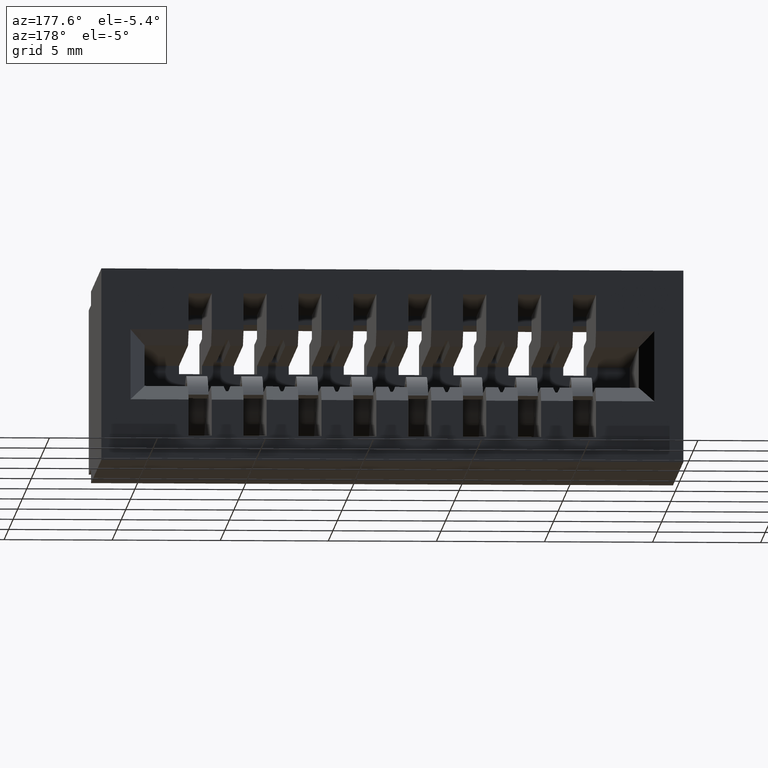
[diagram: clean part render]
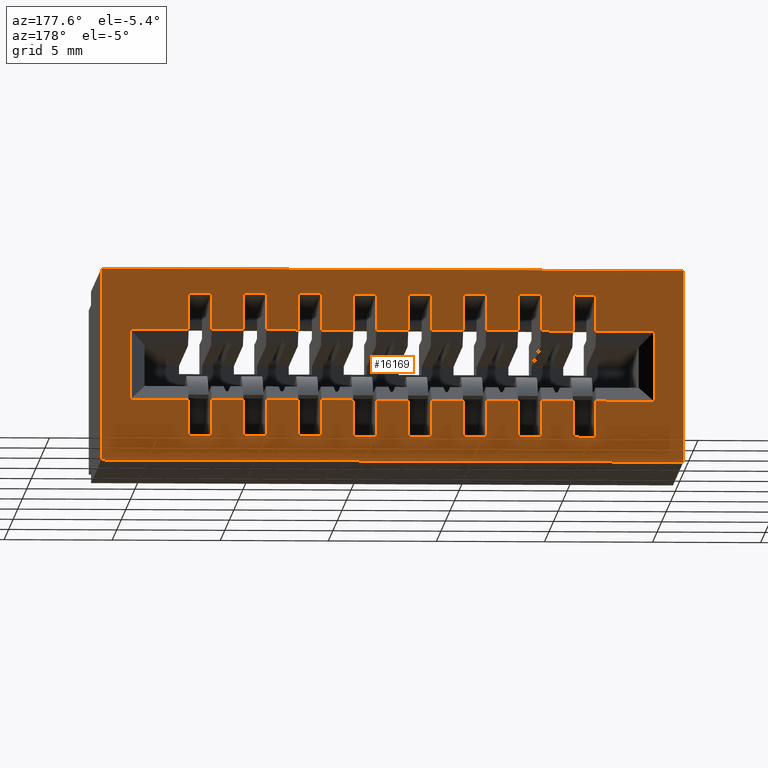
[diagram: same view with one face highlighted and labeled with its STEP entity id]
A machine part, auxiliary view. The second image highlights one B-rep face of the part: STEP entity #16169.
In plain terms, the highlighted planar face has unit normal (0, -1, 0).
Its self-contained STEP definition (entity closure, byte-faithful):
#37 = CARTESIAN_POINT ( 'NONE',  ( 0.4589999999999996900, 0.5500000000000000400, -0.3050000000000001000 ) ) ;
#82 = LINE ( 'NONE', #6037, #7464 ) ;
#85 = EDGE_CURVE ( 'NONE', #1912, #13380, #8628, .T. ) ;
#165 = CARTESIAN_POINT ( 'NONE',  ( 0.7009999999999997300, 0.5500000000000000400, -4.225887745141794000E-017 ) ) ;
#174 = DIRECTION ( 'NONE',  ( -1.000000000000000000, 0.0000000000000000000, 0.0000000000000000000 ) ) ;
#184 = CARTESIAN_POINT ( 'NONE',  ( 0.2009999999999996800, 0.5500000000000000400, -4.225887745141794000E-017 ) ) ;
#198 = DIRECTION ( 'NONE',  ( -1.000000000000000000, 0.0000000000000000000, 0.0000000000000000000 ) ) ;
#211 = VERTEX_POINT ( 'NONE', #2329 ) ;
#255 = VECTOR ( 'NONE', #10882, 39.37007874015748100 ) ;
#273 = DIRECTION ( 'NONE',  ( 1.000000000000000000, -0.0000000000000000000, -2.307304048702925100E-016 ) ) ;
#306 = VERTEX_POINT ( 'NONE', #1093 ) ;
#368 = CARTESIAN_POINT ( 'NONE',  ( 0.0000000000000000000, 0.5500000000000000400, -0.3499999999999999800 ) ) ;
#375 = DIRECTION ( 'NONE',  ( 2.078529941618992500E-016, 0.0000000000000000000, 1.000000000000000000 ) ) ;
#402 = CARTESIAN_POINT ( 'NONE',  ( 1.007000000000000300, 0.5500000000000000400, -0.2389999999999999600 ) ) ;
#438 = CARTESIAN_POINT ( 'NONE',  ( 1.110816665604960700, 0.5500000000000000400, -0.2389999999999999600 ) ) ;
#460 = CARTESIAN_POINT ( 'NONE',  ( 1.110816665604960700, 0.5500000000000000400, -0.1109999999999999700 ) ) ;
#505 = DIRECTION ( 'NONE',  ( 2.078529941618992500E-016, 0.0000000000000000000, 1.000000000000000000 ) ) ;
#574 = CARTESIAN_POINT ( 'NONE',  ( 0.05299999999999995700, 0.5500000000000000400, -0.2389999999999999600 ) ) ;
#665 = VERTEX_POINT ( 'NONE', #11460 ) ;
#680 = VECTOR ( 'NONE', #3930, 39.37007874015748100 ) ;
#688 = CARTESIAN_POINT ( 'NONE',  ( 0.7589999999999997900, 0.5500000000000000400, -0.2389999999999999600 ) ) ;
#734 = DIRECTION ( 'NONE',  ( 0.0000000000000000000, 0.0000000000000000000, 1.000000000000000000 ) ) ;
#781 = CARTESIAN_POINT ( 'NONE',  ( 0.05300000000000000500, 0.5500000000000000400, -0.3499999999999999800 ) ) ;
#824 = VECTOR ( 'NONE', #3167, 39.37007874015748100 ) ;
#829 = CARTESIAN_POINT ( 'NONE',  ( 0.0000000000000000000, 0.5500000000000000400, 0.0000000000000000000 ) ) ;
#831 = CARTESIAN_POINT ( 'NONE',  ( 1.060000000000000100, 0.5500000000000000400, -0.3499999999999999800 ) ) ;
#846 = VERTEX_POINT ( 'NONE', #16712 ) ;
#900 = VECTOR ( 'NONE', #14143, 39.37007874015748100 ) ;
#903 = DIRECTION ( 'NONE',  ( -1.000000000000000000, 0.0000000000000000000, 0.0000000000000000000 ) ) ;
#945 = CARTESIAN_POINT ( 'NONE',  ( 0.2589999999999996700, 0.5500000000000000400, -0.1109999999999999600 ) ) ;
#969 = VECTOR ( 'NONE', #5848, 39.37007874015748100 ) ;
#1012 = VECTOR ( 'NONE', #4214, 39.37007874015748100 ) ;
#1058 = DIRECTION ( 'NONE',  ( 1.000000000000000000, -0.0000000000000000000, -2.307304048702925100E-016 ) ) ;
#1091 = ORIENTED_EDGE ( 'NONE', *, *, #10744, .T. ) ;
#1093 = CARTESIAN_POINT ( 'NONE',  ( 0.1589999999999997000, 0.5500000000000000400, -0.1109999999999999200 ) ) ;
#1127 = VERTEX_POINT ( 'NONE', #11926 ) ;
#1277 = EDGE_CURVE ( 'NONE', #13380, #4704, #14356, .T. ) ;
#1332 = VERTEX_POINT ( 'NONE', #11258 ) ;
#1367 = VERTEX_POINT ( 'NONE', #9956 ) ;
#1410 = VECTOR ( 'NONE', #3008, 39.37007874015748100 ) ;
#1502 = VERTEX_POINT ( 'NONE', #9934 ) ;
#1541 = CARTESIAN_POINT ( 'NONE',  ( 1.007000000000000300, 0.5500000000000000400, -0.1109999999999999700 ) ) ;
#1571 = ORIENTED_EDGE ( 'NONE', *, *, #8691, .T. ) ;
#1580 = VERTEX_POINT ( 'NONE', #15589 ) ;
#1593 = VECTOR ( 'NONE', #7748, 39.37007874015748100 ) ;
#1611 = VERTEX_POINT ( 'NONE', #8786 ) ;
#1640 = CARTESIAN_POINT ( 'NONE',  ( 0.6589999999999997000, 0.5500000000000000400, -3.256820044686565700E-017 ) ) ;
#1643 = EDGE_CURVE ( 'NONE', #3465, #4939, #16082, .T. ) ;
#1644 = ORIENTED_EDGE ( 'NONE', *, *, #12827, .F. ) ;
#1710 = LINE ( 'NONE', #7291, #15478 ) ;
#1722 = VECTOR ( 'NONE', #17679, 39.37007874015748100 ) ;
#1728 = ORIENTED_EDGE ( 'NONE', *, *, #7660, .T. ) ;
#1762 = LINE ( 'NONE', #16375, #15101 ) ;
#1775 = DIRECTION ( 'NONE',  ( 2.078529941618992500E-016, 0.0000000000000000000, 1.000000000000000000 ) ) ;
#1782 = CARTESIAN_POINT ( 'NONE',  ( 1.110816665604960700, 0.5500000000000000400, -0.1109999999999999700 ) ) ;
#1796 = ORIENTED_EDGE ( 'NONE', *, *, #12384, .F. ) ;
#1805 = EDGE_CURVE ( 'NONE', #6286, #4021, #2942, .T. ) ;
#1810 = CARTESIAN_POINT ( 'NONE',  ( 0.0000000000000000000, 0.5500000000000000400, 0.0000000000000000000 ) ) ;
#1812 = CARTESIAN_POINT ( 'NONE',  ( 0.4589999999999996900, 0.5500000000000000400, -0.04499999999999978300 ) ) ;
#1859 = LINE ( 'NONE', #4464, #16076 ) ;
#1912 = VERTEX_POINT ( 'NONE', #1541 ) ;
#1944 = VECTOR ( 'NONE', #12769, 39.37007874015748100 ) ;
#1993 = VERTEX_POINT ( 'NONE', #3126 ) ;
#2017 = LINE ( 'NONE', #14629, #9815 ) ;
#2057 = CARTESIAN_POINT ( 'NONE',  ( 0.7009999999999997300, 0.5500000000000000400, -0.2389999999999999600 ) ) ;
#2139 = CARTESIAN_POINT ( 'NONE',  ( 0.9009999999999998000, 0.5500000000000000400, -0.2389999999999999100 ) ) ;
#2147 = VERTEX_POINT ( 'NONE', #688 ) ;
#2218 = VERTEX_POINT ( 'NONE', #9107 ) ;
#2241 = DIRECTION ( 'NONE',  ( 2.078529941618992500E-016, 0.0000000000000000000, 1.000000000000000000 ) ) ;
#2312 = VECTOR ( 'NONE', #8795, 39.37007874015748100 ) ;
#2329 = CARTESIAN_POINT ( 'NONE',  ( 0.3589999999999997100, 0.5500000000000000400, -0.04499999999999978300 ) ) ;
#2347 = CARTESIAN_POINT ( 'NONE',  ( 1.060000000000000100, 0.5500000000000000400, 0.0000000000000000000 ) ) ;
#2411 = ORIENTED_EDGE ( 'NONE', *, *, #3246, .T. ) ;
#2453 = LINE ( 'NONE', #11891, #16219 ) ;
#2470 = LINE ( 'NONE', #14574, #1593 ) ;
#2472 = DIRECTION ( 'NONE',  ( 1.000000000000000000, -0.0000000000000000000, -2.307304048702925100E-016 ) ) ;
#2492 = VERTEX_POINT ( 'NONE', #13856 ) ;
#2517 = VECTOR ( 'NONE', #16089, 39.37007874015748100 ) ;
#2597 = EDGE_CURVE ( 'NONE', #4228, #17538, #6913, .T. ) ;
#2709 = VECTOR ( 'NONE', #4028, 39.37007874015748100 ) ;
#2790 = EDGE_CURVE ( 'NONE', #3325, #4939, #14848, .T. ) ;
#2791 = DIRECTION ( 'NONE',  ( 2.078529941618992500E-016, 0.0000000000000000000, 1.000000000000000000 ) ) ;
#2792 = CARTESIAN_POINT ( 'NONE',  ( 0.5589999999999997200, 0.5500000000000000400, -0.04499999999999978300 ) ) ;
#2808 = CARTESIAN_POINT ( 'NONE',  ( 0.9009999999999998000, 0.5500000000000000400, -4.225887745141794000E-017 ) ) ;
#2931 = VERTEX_POINT ( 'NONE', #10774 ) ;
#2942 = LINE ( 'NONE', #12011, #12638 ) ;
#2961 = CARTESIAN_POINT ( 'NONE',  ( 0.5009999999999995600, 0.5500000000000000400, -0.2389999999999999600 ) ) ;
#2981 = VECTOR ( 'NONE', #13912, 39.37007874015748100 ) ;
#2990 = VECTOR ( 'NONE', #12978, 39.37007874015748100 ) ;
#3008 = DIRECTION ( 'NONE',  ( -1.000000000000000000, 0.0000000000000000000, 0.0000000000000000000 ) ) ;
#3062 = FACE_BOUND ( 'NONE', #6810, .T. ) ;
#3067 = ORIENTED_EDGE ( 'NONE', *, *, #6065, .F. ) ;
#3126 = CARTESIAN_POINT ( 'NONE',  ( 0.1589999999999997000, 0.5500000000000000400, -0.2389999999999999100 ) ) ;
#3136 = ORIENTED_EDGE ( 'NONE', *, *, #9659, .T. ) ;
#3167 = DIRECTION ( 'NONE',  ( -1.000000000000000000, 0.0000000000000000000, 0.0000000000000000000 ) ) ;
#3189 = CARTESIAN_POINT ( 'NONE',  ( 0.2009999999999996200, 0.5500000000000000400, -0.3050000000000001000 ) ) ;
#3239 = VECTOR ( 'NONE', #8666, 39.37007874015748100 ) ;
#3244 = VERTEX_POINT ( 'NONE', #10634 ) ;
#3246 = EDGE_CURVE ( 'NONE', #2492, #3465, #7102, .T. ) ;
#3266 = ORIENTED_EDGE ( 'NONE', *, *, #6956, .F. ) ;
#3278 = EDGE_CURVE ( 'NONE', #2492, #211, #17613, .T. ) ;
#3293 = VECTOR ( 'NONE', #6046, 39.37007874015748100 ) ;
#3294 = VERTEX_POINT ( 'NONE', #15735 ) ;
#3303 = ORIENTED_EDGE ( 'NONE', *, *, #15606, .T. ) ;
#3319 = CARTESIAN_POINT ( 'NONE',  ( 0.8009999999999996000, 0.5500000000000000400, -0.3050000000000001000 ) ) ;
#3325 = VERTEX_POINT ( 'NONE', #3481 ) ;
#3388 = CARTESIAN_POINT ( 'NONE',  ( 0.6589999999999997000, 0.5500000000000000400, -0.04499999999999978300 ) ) ;
#3422 = CARTESIAN_POINT ( 'NONE',  ( 0.5589999999999997200, 0.5500000000000000400, -0.3050000000000001000 ) ) ;
#3444 = CARTESIAN_POINT ( 'NONE',  ( 0.4009999999999996900, 0.5500000000000000400, -4.225887745141794000E-017 ) ) ;
#3447 = VECTOR ( 'NONE', #14284, 39.37007874015748100 ) ;
#3465 = VERTEX_POINT ( 'NONE', #3718 ) ;
#3481 = CARTESIAN_POINT ( 'NONE',  ( 0.2589999999999996700, 0.5500000000000000400, -0.04499999999999978300 ) ) ;
#3486 = CARTESIAN_POINT ( 'NONE',  ( 0.2009999999999996800, 0.5500000000000000400, -4.225887745141794000E-017 ) ) ;
#3515 = FACE_OUTER_BOUND ( 'NONE', #9714, .T. ) ;
#3534 = EDGE_CURVE ( 'NONE', #14304, #2147, #6019, .T. ) ;
#3704 = LINE ( 'NONE', #6892, #6931 ) ;
#3718 = CARTESIAN_POINT ( 'NONE',  ( 0.3009999999999997100, 0.5500000000000000400, -0.1109999999999999700 ) ) ;
#3719 = EDGE_CURVE ( 'NONE', #4207, #5478, #17178, .T. ) ;
#3773 = CARTESIAN_POINT ( 'NONE',  ( 0.8589999999999997600, 0.5500000000000000400, -3.256820044686565700E-017 ) ) ;
#3805 = CARTESIAN_POINT ( 'NONE',  ( 0.6009999999999996500, 0.5500000000000000400, -0.3050000000000001000 ) ) ;
#3806 = ORIENTED_EDGE ( 'NONE', *, *, #9819, .T. ) ;
#3925 = CARTESIAN_POINT ( 'NONE',  ( 0.6009999999999996500, 0.5500000000000000400, -4.225887745141794000E-017 ) ) ;
#3930 = DIRECTION ( 'NONE',  ( 2.078529941618992500E-016, 0.0000000000000000000, 1.000000000000000000 ) ) ;
#3979 = CARTESIAN_POINT ( 'NONE',  ( 0.5589999999999997200, 0.5500000000000000400, -3.256820044686565700E-017 ) ) ;
#4021 = VERTEX_POINT ( 'NONE', #831 ) ;
#4028 = DIRECTION ( 'NONE',  ( -1.000000000000000000, 0.0000000000000000000, 0.0000000000000000000 ) ) ;
#4099 = LINE ( 'NONE', #8814, #7773 ) ;
#4101 = CARTESIAN_POINT ( 'NONE',  ( 0.2009999999999997100, 0.5500000000000000400, -0.1109999999999999700 ) ) ;
#4147 = ORIENTED_EDGE ( 'NONE', *, *, #17306, .F. ) ;
#4148 = LINE ( 'NONE', #8515, #14670 ) ;
#4160 = CARTESIAN_POINT ( 'NONE',  ( 0.4009999999999996300, 0.5500000000000000400, -0.3050000000000001000 ) ) ;
#4182 = VECTOR ( 'NONE', #7642, 39.37007874015748100 ) ;
#4207 = VERTEX_POINT ( 'NONE', #10988 ) ;
#4213 = VECTOR ( 'NONE', #13070, 39.37007874015748100 ) ;
#4214 = DIRECTION ( 'NONE',  ( 2.078529941618992500E-016, 0.0000000000000000000, 1.000000000000000000 ) ) ;
#4222 = CARTESIAN_POINT ( 'NONE',  ( 0.1589999999999996100, 0.5500000000000000400, -0.3050000000000001000 ) ) ;
#4228 = VERTEX_POINT ( 'NONE', #5558 ) ;
#4343 = VECTOR ( 'NONE', #11455, 39.37007874015748100 ) ;
#4352 = CARTESIAN_POINT ( 'NONE',  ( 1.110816665604960700, 0.5500000000000000400, -0.2389999999999999600 ) ) ;
#4389 = DIRECTION ( 'NONE',  ( 2.078529941618992500E-016, 0.0000000000000000000, 1.000000000000000000 ) ) ;
#4402 = CARTESIAN_POINT ( 'NONE',  ( 0.5009999999999996700, 0.5500000000000000400, -0.3050000000000001000 ) ) ;
#4425 = VERTEX_POINT ( 'NONE', #3189 ) ;
#4440 = CARTESIAN_POINT ( 'NONE',  ( 1.110816665604960700, 0.5500000000000000400, -0.2389999999999999600 ) ) ;
#4455 = DIRECTION ( 'NONE',  ( 2.078529941618992500E-016, 0.0000000000000000000, 1.000000000000000000 ) ) ;
#4461 = EDGE_CURVE ( 'NONE', #5595, #14630, #16092, .T. ) ;
#4464 = CARTESIAN_POINT ( 'NONE',  ( 0.7589999999999997900, 0.5500000000000000400, -3.256820044686565700E-017 ) ) ;
#4488 = CARTESIAN_POINT ( 'NONE',  ( 1.110816665604960700, 0.5500000000000000400, -0.2389999999999999600 ) ) ;
#4547 = CARTESIAN_POINT ( 'NONE',  ( 1.110816665604960700, 0.5500000000000000400, -0.2389999999999999600 ) ) ;
#4595 = ORIENTED_EDGE ( 'NONE', *, *, #12653, .F. ) ;
#4608 = DIRECTION ( 'NONE',  ( -1.000000000000000000, 0.0000000000000000000, 0.0000000000000000000 ) ) ;
#4649 = VECTOR ( 'NONE', #273, 39.37007874015748100 ) ;
#4667 = ORIENTED_EDGE ( 'NONE', *, *, #16475, .T. ) ;
#4685 = ORIENTED_EDGE ( 'NONE', *, *, #12248, .T. ) ;
#4687 = CARTESIAN_POINT ( 'NONE',  ( 1.110816665604960700, 0.5500000000000000400, -0.2389999999999999600 ) ) ;
#4704 = VERTEX_POINT ( 'NONE', #16683 ) ;
#4756 = VERTEX_POINT ( 'NONE', #8606 ) ;
#4776 = DIRECTION ( 'NONE',  ( 1.000000000000000000, -0.0000000000000000000, -2.307304048702925100E-016 ) ) ;
#4837 = ORIENTED_EDGE ( 'NONE', *, *, #5040, .F. ) ;
#4839 = VECTOR ( 'NONE', #2472, 39.37007874015748100 ) ;
#4875 = DIRECTION ( 'NONE',  ( 2.078529941618992500E-016, 0.0000000000000000000, 1.000000000000000000 ) ) ;
#4884 = EDGE_CURVE ( 'NONE', #17331, #3244, #6417, .T. ) ;
#4905 = CARTESIAN_POINT ( 'NONE',  ( 0.7589999999999995600, 0.5500000000000000400, -0.3050000000000001000 ) ) ;
#4939 = VERTEX_POINT ( 'NONE', #6239 ) ;
#5038 = VERTEX_POINT ( 'NONE', #17440 ) ;
#5040 = EDGE_CURVE ( 'NONE', #4756, #1367, #5749, .T. ) ;
#5046 = CARTESIAN_POINT ( 'NONE',  ( 0.3589999999999997100, 0.5500000000000000400, -0.04499999999999978300 ) ) ;
#5097 = LINE ( 'NONE', #4352, #1410 ) ;
#5119 = VECTOR ( 'NONE', #6045, 39.37007874015748100 ) ;
#5164 = DIRECTION ( 'NONE',  ( 1.000000000000000000, -0.0000000000000000000, -2.307304048702925100E-016 ) ) ;
#5216 = CARTESIAN_POINT ( 'NONE',  ( 0.7589999999999997900, 0.5500000000000000400, -3.256820044686565700E-017 ) ) ;
#5235 = LINE ( 'NONE', #829, #8920 ) ;
#5242 = VECTOR ( 'NONE', #4875, 39.37007874015748100 ) ;
#5334 = EDGE_CURVE ( 'NONE', #1611, #8352, #5097, .T. ) ;
#5338 = CARTESIAN_POINT ( 'NONE',  ( 0.0000000000000000000, 0.5500000000000000400, -0.3499999999999999800 ) ) ;
#5358 = EDGE_CURVE ( 'NONE', #2218, #3294, #11994, .T. ) ;
#5363 = DIRECTION ( 'NONE',  ( 2.078529941618992500E-016, 0.0000000000000000000, 1.000000000000000000 ) ) ;
#5398 = VECTOR ( 'NONE', #10020, 39.37007874015748100 ) ;
#5426 = EDGE_CURVE ( 'NONE', #8246, #2218, #82, .T. ) ;
#5431 = ORIENTED_EDGE ( 'NONE', *, *, #16961, .F. ) ;
#5455 = ORIENTED_EDGE ( 'NONE', *, *, #7686, .T. ) ;
#5461 = VECTOR ( 'NONE', #16592, 39.37007874015748100 ) ;
#5478 = VERTEX_POINT ( 'NONE', #2057 ) ;
#5558 = CARTESIAN_POINT ( 'NONE',  ( 0.4589999999999996900, 0.5500000000000000400, -0.1109999999999999700 ) ) ;
#5585 = VECTOR ( 'NONE', #12143, 39.37007874015748100 ) ;
#5595 = VERTEX_POINT ( 'NONE', #945 ) ;
#5611 = LINE ( 'NONE', #460, #16148 ) ;
#5643 = LINE ( 'NONE', #3444, #4213 ) ;
#5646 = VECTOR ( 'NONE', #15745, 39.37007874015748100 ) ;
#5669 = VERTEX_POINT ( 'NONE', #17554 ) ;
#5678 = VERTEX_POINT ( 'NONE', #8032 ) ;
#5702 = ORIENTED_EDGE ( 'NONE', *, *, #14530, .T. ) ;
#5704 = LINE ( 'NONE', #9657, #10258 ) ;
#5749 = LINE ( 'NONE', #3773, #2517 ) ;
#5811 = DIRECTION ( 'NONE',  ( -1.000000000000000000, 0.0000000000000000000, 0.0000000000000000000 ) ) ;
#5820 = VECTOR ( 'NONE', #2241, 39.37007874015748100 ) ;
#5831 = CARTESIAN_POINT ( 'NONE',  ( 0.8589999999999997600, 0.5500000000000000400, -0.04499999999999978300 ) ) ;
#5848 = DIRECTION ( 'NONE',  ( -1.000000000000000000, 0.0000000000000000000, 0.0000000000000000000 ) ) ;
#5852 = ORIENTED_EDGE ( 'NONE', *, *, #8119, .F. ) ;
#5883 = CARTESIAN_POINT ( 'NONE',  ( 0.8009999999999997100, 0.5500000000000000400, -4.225887745141794000E-017 ) ) ;
#5932 = ORIENTED_EDGE ( 'NONE', *, *, #13965, .F. ) ;
#5951 = CARTESIAN_POINT ( 'NONE',  ( 1.110816665604960700, 0.5500000000000000400, -0.1109999999999999700 ) ) ;
#5952 = VECTOR ( 'NONE', #14048, 39.37007874015748100 ) ;
#5956 = LINE ( 'NONE', #5883, #9645 ) ;
#5966 = EDGE_CURVE ( 'NONE', #1993, #6113, #9641, .T. ) ;
#6019 = LINE ( 'NONE', #5216, #5585 ) ;
#6037 = CARTESIAN_POINT ( 'NONE',  ( 0.3589999999999997100, 0.5500000000000000400, -3.256820044686565700E-017 ) ) ;
#6045 = DIRECTION ( 'NONE',  ( 2.078529941618992500E-016, 0.0000000000000000000, 1.000000000000000000 ) ) ;
#6046 = DIRECTION ( 'NONE',  ( -1.000000000000000000, 0.0000000000000000000, 0.0000000000000000000 ) ) ;
#6054 = ORIENTED_EDGE ( 'NONE', *, *, #8265, .T. ) ;
#6065 = EDGE_CURVE ( 'NONE', #1580, #846, #15602, .T. ) ;
#6069 = VECTOR ( 'NONE', #734, 39.37007874015748100 ) ;
#6078 = LINE ( 'NONE', #17142, #9344 ) ;
#6085 = VECTOR ( 'NONE', #5811, 39.37007874015748100 ) ;
#6102 = VERTEX_POINT ( 'NONE', #8878 ) ;
#6109 = VERTEX_POINT ( 'NONE', #17062 ) ;
#6113 = VERTEX_POINT ( 'NONE', #574 ) ;
#6124 = LINE ( 'NONE', #11022, #13426 ) ;
#6129 = DIRECTION ( 'NONE',  ( 2.078529941618992500E-016, 0.0000000000000000000, 1.000000000000000000 ) ) ;
#6140 = LINE ( 'NONE', #15504, #13026 ) ;
#6158 = DIRECTION ( 'NONE',  ( 1.000000000000000000, -0.0000000000000000000, -2.307304048702925100E-016 ) ) ;
#6239 = CARTESIAN_POINT ( 'NONE',  ( 0.3009999999999996600, 0.5500000000000000400, -0.04499999999999979000 ) ) ;
#6248 = CARTESIAN_POINT ( 'NONE',  ( 0.3589999999999996500, 0.5500000000000000400, -0.3050000000000001000 ) ) ;
#6257 = LINE ( 'NONE', #6415, #5820 ) ;
#6285 = CARTESIAN_POINT ( 'NONE',  ( 0.5589999999999996100, 0.5500000000000000400, -0.2389999999999999600 ) ) ;
#6286 = VERTEX_POINT ( 'NONE', #2347 ) ;
#6334 = VERTEX_POINT ( 'NONE', #3805 ) ;
#6397 = LINE ( 'NONE', #16324, #2709 ) ;
#6415 = CARTESIAN_POINT ( 'NONE',  ( 0.2589999999999996700, 0.5500000000000000400, -3.256820044686565700E-017 ) ) ;
#6417 = LINE ( 'NONE', #7382, #2312 ) ;
#6435 = DIRECTION ( 'NONE',  ( 1.000000000000000000, -0.0000000000000000000, -2.307304048702925100E-016 ) ) ;
#6469 = DIRECTION ( 'NONE',  ( 0.0000000000000000000, 0.0000000000000000000, -1.000000000000000000 ) ) ;
#6490 = ORIENTED_EDGE ( 'NONE', *, *, #16500, .T. ) ;
#6653 = EDGE_CURVE ( 'NONE', #6102, #1127, #5956, .T. ) ;
#6750 = EDGE_CURVE ( 'NONE', #7036, #5669, #11128, .T. ) ;
#6764 = ORIENTED_EDGE ( 'NONE', *, *, #7522, .T. ) ;
#6810 = EDGE_LOOP ( 'NONE', ( #16813, #7380, #16802, #16670, #14185, #4837, #12433, #11086, #7040, #11870, #11230, #14891, #1796, #4147, #3303, #14659, #14946, #15706, #13624, #10743, #8937, #15850, #6490, #9528, #5431, #17490, #2411, #12140, #12949, #5932, #13129, #8280, #1644, #10864, #3136, #7554, #14973, #3266, #1571, #11256, #3067, #7579, #11531, #3806, #17053, #13687, #5455, #4667, #12700, #16478, #1091, #6764, #5852, #4595, #1728, #5702, #7024, #11952, #4685, #7209, #13035, #7324, #10723, #9969, #15548, #11032, #13394, #17841 ) ) ;
#6825 = DIRECTION ( 'NONE',  ( 0.0000000000000000000, -0.0000000000000000000, -1.000000000000000000 ) ) ;
#6892 = CARTESIAN_POINT ( 'NONE',  ( 0.2589999999999996700, 0.5500000000000000400, -3.256820044686565700E-017 ) ) ;
#6913 = LINE ( 'NONE', #10001, #3239 ) ;
#6914 = VECTOR ( 'NONE', #8534, 39.37007874015748100 ) ;
#6931 = VECTOR ( 'NONE', #17842, 39.37007874015748100 ) ;
#6945 = VERTEX_POINT ( 'NONE', #12080 ) ;
#6953 = CARTESIAN_POINT ( 'NONE',  ( 0.6009999999999996500, 0.5500000000000000400, -0.1109999999999999700 ) ) ;
#6956 = EDGE_CURVE ( 'NONE', #12941, #1993, #11325, .T. ) ;
#7024 = ORIENTED_EDGE ( 'NONE', *, *, #9990, .F. ) ;
#7036 = VERTEX_POINT ( 'NONE', #6953 ) ;
#7040 = ORIENTED_EDGE ( 'NONE', *, *, #15867, .F. ) ;
#7049 = CARTESIAN_POINT ( 'NONE',  ( 0.5589999999999997200, 0.5500000000000000400, -0.3050000000000001000 ) ) ;
#7102 = LINE ( 'NONE', #8593, #3447 ) ;
#7134 = LINE ( 'NONE', #16143, #17645 ) ;
#7207 = VECTOR ( 'NONE', #4389, 39.37007874015748100 ) ;
#7209 = ORIENTED_EDGE ( 'NONE', *, *, #3719, .T. ) ;
#7222 = DIRECTION ( 'NONE',  ( 2.078529941618992500E-016, 0.0000000000000000000, 1.000000000000000000 ) ) ;
#7291 = CARTESIAN_POINT ( 'NONE',  ( 0.5009999999999996700, 0.5500000000000000400, -4.225887745141794000E-017 ) ) ;
#7324 = ORIENTED_EDGE ( 'NONE', *, *, #3534, .F. ) ;
#7341 = LINE ( 'NONE', #1640, #6914 ) ;
#7356 = DIRECTION ( 'NONE',  ( 2.078529941618992500E-016, 0.0000000000000000000, 1.000000000000000000 ) ) ;
#7380 = ORIENTED_EDGE ( 'NONE', *, *, #16891, .T. ) ;
#7382 = CARTESIAN_POINT ( 'NONE',  ( 0.8589999999999996500, 0.5500000000000000400, -0.3050000000000001000 ) ) ;
#7423 = VECTOR ( 'NONE', #5363, 39.37007874015748100 ) ;
#7445 = LINE ( 'NONE', #8585, #4649 ) ;
#7449 = EDGE_CURVE ( 'NONE', #4425, #846, #11733, .T. ) ;
#7454 = VECTOR ( 'NONE', #6129, 39.37007874015748100 ) ;
#7464 = VECTOR ( 'NONE', #7356, 39.37007874015748100 ) ;
#7466 = CARTESIAN_POINT ( 'NONE',  ( 0.3589999999999997100, 0.5500000000000000400, -3.256820044686565700E-017 ) ) ;
#7522 = EDGE_CURVE ( 'NONE', #12440, #11021, #17711, .T. ) ;
#7527 = VERTEX_POINT ( 'NONE', #10069 ) ;
#7554 = ORIENTED_EDGE ( 'NONE', *, *, #8262, .T. ) ;
#7579 = ORIENTED_EDGE ( 'NONE', *, *, #17575, .F. ) ;
#7605 = CARTESIAN_POINT ( 'NONE',  ( 0.5589999999999997200, 0.5500000000000000400, -3.256820044686565700E-017 ) ) ;
#7638 = CARTESIAN_POINT ( 'NONE',  ( 1.007000000000000300, 0.5500000000000000400, -0.3499999999999999800 ) ) ;
#7642 = DIRECTION ( 'NONE',  ( 1.000000000000000000, -0.0000000000000000000, -2.307304048702925100E-016 ) ) ;
#7651 = LINE ( 'NONE', #16685, #14504 ) ;
#7660 = EDGE_CURVE ( 'NONE', #12968, #6334, #12362, .T. ) ;
#7685 = CARTESIAN_POINT ( 'NONE',  ( 0.3589999999999996500, 0.5500000000000000400, -0.3050000000000001000 ) ) ;
#7686 = EDGE_CURVE ( 'NONE', #8246, #14609, #15131, .T. ) ;
#7713 = DIRECTION ( 'NONE',  ( 2.078529941618992500E-016, 0.0000000000000000000, 1.000000000000000000 ) ) ;
#7748 = DIRECTION ( 'NONE',  ( 1.000000000000000000, -0.0000000000000000000, -2.307304048702925100E-016 ) ) ;
#7773 = VECTOR ( 'NONE', #505, 39.37007874015748100 ) ;
#7810 = DIRECTION ( 'NONE',  ( 2.078529941618992500E-016, 0.0000000000000000000, 1.000000000000000000 ) ) ;
#7894 = VECTOR ( 'NONE', #12879, 39.37007874015748100 ) ;
#7975 = CARTESIAN_POINT ( 'NONE',  ( 0.1589999999999997000, 0.5500000000000000400, -0.04499999999999978300 ) ) ;
#8032 = CARTESIAN_POINT ( 'NONE',  ( 0.4009999999999996900, 0.5500000000000000400, -0.2389999999999999600 ) ) ;
#8119 = EDGE_CURVE ( 'NONE', #8240, #11021, #15114, .T. ) ;
#8142 = VERTEX_POINT ( 'NONE', #402 ) ;
#8161 = CARTESIAN_POINT ( 'NONE',  ( 0.0000000000000000000, 0.5500000000000000400, -0.3499999999999999800 ) ) ;
#8165 = EDGE_CURVE ( 'NONE', #9360, #5678, #14246, .T. ) ;
#8240 = VERTEX_POINT ( 'NONE', #6285 ) ;
#8246 = VERTEX_POINT ( 'NONE', #7685 ) ;
#8262 = EDGE_CURVE ( 'NONE', #2931, #6113, #16194, .T. ) ;
#8265 = EDGE_CURVE ( 'NONE', #665, #6286, #5235, .T. ) ;
#8280 = ORIENTED_EDGE ( 'NONE', *, *, #13277, .T. ) ;
#8290 = VECTOR ( 'NONE', #8984, 39.37007874015748100 ) ;
#8293 = CARTESIAN_POINT ( 'NONE',  ( 0.2589999999999996200, 0.5500000000000000400, -0.3050000000000001000 ) ) ;
#8352 = VERTEX_POINT ( 'NONE', #9319 ) ;
#8444 = LINE ( 'NONE', #5046, #15289 ) ;
#8465 = VECTOR ( 'NONE', #13063, 39.37007874015748100 ) ;
#8515 = CARTESIAN_POINT ( 'NONE',  ( 1.110816665604960700, 0.5500000000000000400, -0.1109999999999999700 ) ) ;
#8534 = DIRECTION ( 'NONE',  ( 2.078529941618992500E-016, 0.0000000000000000000, 1.000000000000000000 ) ) ;
#8585 = CARTESIAN_POINT ( 'NONE',  ( 0.6589999999999997000, 0.5500000000000000400, -0.3050000000000001000 ) ) ;
#8593 = CARTESIAN_POINT ( 'NONE',  ( 1.110816665604960700, 0.5500000000000000400, -0.1109999999999999700 ) ) ;
#8606 = CARTESIAN_POINT ( 'NONE',  ( 0.8589999999999997600, 0.5500000000000000400, -0.1109999999999999200 ) ) ;
#8628 = LINE ( 'NONE', #5951, #824 ) ;
#8666 = DIRECTION ( 'NONE',  ( 2.078529941618992500E-016, 0.0000000000000000000, 1.000000000000000000 ) ) ;
#8691 = EDGE_CURVE ( 'NONE', #12941, #4425, #6078, .T. ) ;
#8707 = CARTESIAN_POINT ( 'NONE',  ( 0.7009999999999997300, 0.5500000000000000400, -0.1109999999999999700 ) ) ;
#8715 = EDGE_CURVE ( 'NONE', #7527, #12100, #5643, .T. ) ;
#8786 = CARTESIAN_POINT ( 'NONE',  ( 0.8589999999999997600, 0.5500000000000000400, -0.2389999999999999100 ) ) ;
#8795 = DIRECTION ( 'NONE',  ( 1.000000000000000000, -0.0000000000000000000, -2.307304048702925100E-016 ) ) ;
#8814 = CARTESIAN_POINT ( 'NONE',  ( 0.9009999999999998000, 0.5500000000000000400, -4.225887745141794000E-017 ) ) ;
#8819 = DIRECTION ( 'NONE',  ( -1.000000000000000000, 0.0000000000000000000, 0.0000000000000000000 ) ) ;
#8840 = CARTESIAN_POINT ( 'NONE',  ( 0.3009999999999996600, 0.5500000000000000400, -4.225887745141794000E-017 ) ) ;
#8878 = CARTESIAN_POINT ( 'NONE',  ( 0.8009999999999997100, 0.5500000000000000400, -0.1109999999999999700 ) ) ;
#8906 = LINE ( 'NONE', #8935, #8465 ) ;
#8920 = VECTOR ( 'NONE', #10525, 39.37007874015748100 ) ;
#8923 = VERTEX_POINT ( 'NONE', #11044 ) ;
#8935 = CARTESIAN_POINT ( 'NONE',  ( 1.110816665604960700, 0.5500000000000000400, -0.1109999999999999700 ) ) ;
#8937 = ORIENTED_EDGE ( 'NONE', *, *, #14173, .F. ) ;
#8984 = DIRECTION ( 'NONE',  ( 1.000000000000000000, -0.0000000000000000000, -2.307304048702925100E-016 ) ) ;
#9107 = CARTESIAN_POINT ( 'NONE',  ( 0.3589999999999997100, 0.5500000000000000400, -0.2389999999999999600 ) ) ;
#9319 = CARTESIAN_POINT ( 'NONE',  ( 0.8009999999999997100, 0.5500000000000000400, -0.2389999999999999100 ) ) ;
#9342 = EDGE_CURVE ( 'NONE', #17220, #6109, #9888, .T. ) ;
#9344 = VECTOR ( 'NONE', #6158, 39.37007874015748100 ) ;
#9360 = VERTEX_POINT ( 'NONE', #13351 ) ;
#9446 = VECTOR ( 'NONE', #7713, 39.37007874015748100 ) ;
#9499 = DIRECTION ( 'NONE',  ( 2.078529941618992500E-016, 0.0000000000000000000, 1.000000000000000000 ) ) ;
#9528 = ORIENTED_EDGE ( 'NONE', *, *, #8715, .T. ) ;
#9630 = EDGE_CURVE ( 'NONE', #1502, #15956, #1859, .T. ) ;
#9641 = LINE ( 'NONE', #12686, #5952 ) ;
#9645 = VECTOR ( 'NONE', #4455, 39.37007874015748100 ) ;
#9657 = CARTESIAN_POINT ( 'NONE',  ( 0.5589999999999997200, 0.5500000000000000400, -0.04499999999999978300 ) ) ;
#9658 = VERTEX_POINT ( 'NONE', #368 ) ;
#9659 = EDGE_CURVE ( 'NONE', #306, #2931, #15630, .T. ) ;
#9714 = EDGE_LOOP ( 'NONE', ( #13991, #6054, #13399, #12678 ) ) ;
#9815 = VECTOR ( 'NONE', #903, 39.37007874015748100 ) ;
#9819 = EDGE_CURVE ( 'NONE', #6109, #3294, #13480, .T. ) ;
#9888 = LINE ( 'NONE', #17552, #16706 ) ;
#9934 = CARTESIAN_POINT ( 'NONE',  ( 0.7589999999999997900, 0.5500000000000000400, -0.1109999999999999900 ) ) ;
#9956 = CARTESIAN_POINT ( 'NONE',  ( 0.8589999999999997600, 0.5500000000000000400, -0.04499999999999978300 ) ) ;
#9969 = ORIENTED_EDGE ( 'NONE', *, *, #13508, .T. ) ;
#9990 = EDGE_CURVE ( 'NONE', #14905, #12613, #6397, .T. ) ;
#10001 = CARTESIAN_POINT ( 'NONE',  ( 0.4589999999999996900, 0.5500000000000000400, -3.256820044686565700E-017 ) ) ;
#10020 = DIRECTION ( 'NONE',  ( 1.000000000000000000, -0.0000000000000000000, -2.307304048702925100E-016 ) ) ;
#10026 = VECTOR ( 'NONE', #1775, 39.37007874015748100 ) ;
#10069 = CARTESIAN_POINT ( 'NONE',  ( 0.4009999999999997500, 0.5500000000000000400, -0.1109999999999999700 ) ) ;
#10186 = CARTESIAN_POINT ( 'NONE',  ( 0.2009999999999996800, 0.5500000000000000400, -0.04499999999999979000 ) ) ;
#10208 = CARTESIAN_POINT ( 'NONE',  ( 0.5009999999999996700, 0.5500000000000000400, -0.1109999999999999700 ) ) ;
#10258 = VECTOR ( 'NONE', #11012, 39.37007874015748100 ) ;
#10482 = DIRECTION ( 'NONE',  ( 1.000000000000000000, -0.0000000000000000000, -2.307304048702925100E-016 ) ) ;
#10493 = CARTESIAN_POINT ( 'NONE',  ( 0.3009999999999996600, 0.5500000000000000400, -4.225887745141794000E-017 ) ) ;
#10525 = DIRECTION ( 'NONE',  ( 1.000000000000000000, 0.0000000000000000000, 0.0000000000000000000 ) ) ;
#10634 = CARTESIAN_POINT ( 'NONE',  ( 0.9009999999999995800, 0.5500000000000000400, -0.3050000000000001000 ) ) ;
#10723 = ORIENTED_EDGE ( 'NONE', *, *, #15011, .T. ) ;
#10743 = ORIENTED_EDGE ( 'NONE', *, *, #14792, .T. ) ;
#10744 = EDGE_CURVE ( 'NONE', #15844, #12440, #2470, .T. ) ;
#10774 = CARTESIAN_POINT ( 'NONE',  ( 0.05299999999999995700, 0.5500000000000000400, -0.1109999999999999700 ) ) ;
#10806 = VECTOR ( 'NONE', #10482, 39.37007874015748100 ) ;
#10855 = LINE ( 'NONE', #14969, #17677 ) ;
#10864 = ORIENTED_EDGE ( 'NONE', *, *, #12310, .F. ) ;
#10882 = DIRECTION ( 'NONE',  ( -1.000000000000000000, -0.0000000000000000000, -0.0000000000000000000 ) ) ;
#10988 = CARTESIAN_POINT ( 'NONE',  ( 0.7009999999999997300, 0.5500000000000000400, -0.3050000000000001000 ) ) ;
#11012 = DIRECTION ( 'NONE',  ( 1.000000000000000000, -0.0000000000000000000, -2.307304048702925100E-016 ) ) ;
#11021 = VERTEX_POINT ( 'NONE', #2961 ) ;
#11022 = CARTESIAN_POINT ( 'NONE',  ( 0.8589999999999997600, 0.5500000000000000400, -3.256820044686565700E-017 ) ) ;
#11032 = ORIENTED_EDGE ( 'NONE', *, *, #12739, .F. ) ;
#11044 = CARTESIAN_POINT ( 'NONE',  ( 0.6589999999999997000, 0.5500000000000000400, -0.1109999999999999700 ) ) ;
#11086 = ORIENTED_EDGE ( 'NONE', *, *, #6653, .T. ) ;
#11128 = LINE ( 'NONE', #11610, #7454 ) ;
#11148 = VERTEX_POINT ( 'NONE', #10208 ) ;
#11230 = ORIENTED_EDGE ( 'NONE', *, *, #16319, .T. ) ;
#11256 = ORIENTED_EDGE ( 'NONE', *, *, #7449, .T. ) ;
#11258 = CARTESIAN_POINT ( 'NONE',  ( 0.5009999999999996700, 0.5500000000000000400, -0.04499999999999979000 ) ) ;
#11325 = LINE ( 'NONE', #14822, #14515 ) ;
#11455 = DIRECTION ( 'NONE',  ( 1.000000000000000000, -0.0000000000000000000, -2.307304048702925100E-016 ) ) ;
#11460 = CARTESIAN_POINT ( 'NONE',  ( 0.0000000000000000000, 0.5500000000000000400, 0.0000000000000000000 ) ) ;
#11501 = VERTEX_POINT ( 'NONE', #2792 ) ;
#11519 = LINE ( 'NONE', #3979, #7423 ) ;
#11531 = ORIENTED_EDGE ( 'NONE', *, *, #9342, .T. ) ;
#11535 = LINE ( 'NONE', #13396, #15159 ) ;
#11591 = VECTOR ( 'NONE', #8819, 39.37007874015748100 ) ;
#11610 = CARTESIAN_POINT ( 'NONE',  ( 0.6009999999999996500, 0.5500000000000000400, -4.225887745141794000E-017 ) ) ;
#11663 = LINE ( 'NONE', #1812, #4343 ) ;
#11702 = LINE ( 'NONE', #7605, #680 ) ;
#11733 = LINE ( 'NONE', #184, #7207 ) ;
#11802 = VERTEX_POINT ( 'NONE', #14336 ) ;
#11870 = ORIENTED_EDGE ( 'NONE', *, *, #9630, .F. ) ;
#11891 = CARTESIAN_POINT ( 'NONE',  ( 0.7009999999999997300, 0.5500000000000000400, -4.225887745141794000E-017 ) ) ;
#11926 = CARTESIAN_POINT ( 'NONE',  ( 0.8009999999999997100, 0.5500000000000000400, -0.04499999999999979000 ) ) ;
#11952 = ORIENTED_EDGE ( 'NONE', *, *, #17075, .F. ) ;
#11994 = LINE ( 'NONE', #4488, #969 ) ;
#12005 = VECTOR ( 'NONE', #15550, 39.37007874015748100 ) ;
#12011 = CARTESIAN_POINT ( 'NONE',  ( 1.060000000000000100, 0.5500000000000000400, 0.0000000000000000000 ) ) ;
#12079 = DIRECTION ( 'NONE',  ( 2.078529941618992500E-016, 0.0000000000000000000, 1.000000000000000000 ) ) ;
#12080 = CARTESIAN_POINT ( 'NONE',  ( 0.6589999999999997000, 0.5500000000000000400, -0.3050000000000001000 ) ) ;
#12100 = VERTEX_POINT ( 'NONE', #15086 ) ;
#12140 = ORIENTED_EDGE ( 'NONE', *, *, #1643, .T. ) ;
#12143 = DIRECTION ( 'NONE',  ( 2.078529941618992500E-016, 0.0000000000000000000, 1.000000000000000000 ) ) ;
#12248 = EDGE_CURVE ( 'NONE', #6945, #4207, #7445, .T. ) ;
#12310 = EDGE_CURVE ( 'NONE', #306, #13783, #6140, .T. ) ;
#12361 = VERTEX_POINT ( 'NONE', #3319 ) ;
#12362 = LINE ( 'NONE', #3422, #8290 ) ;
#12384 = EDGE_CURVE ( 'NONE', #5038, #11802, #12589, .T. ) ;
#12433 = ORIENTED_EDGE ( 'NONE', *, *, #16158, .T. ) ;
#12440 = VERTEX_POINT ( 'NONE', #4402 ) ;
#12544 = VECTOR ( 'NONE', #13190, 39.37007874015748100 ) ;
#12554 = LINE ( 'NONE', #3486, #5242 ) ;
#12589 = LINE ( 'NONE', #3388, #15366 ) ;
#12613 = VERTEX_POINT ( 'NONE', #16233 ) ;
#12638 = VECTOR ( 'NONE', #6469, 39.37007874015748100 ) ;
#12653 = EDGE_CURVE ( 'NONE', #12968, #8240, #11519, .T. ) ;
#12659 = CARTESIAN_POINT ( 'NONE',  ( 0.7589999999999997900, 0.5500000000000000400, -0.04499999999999978300 ) ) ;
#12678 = ORIENTED_EDGE ( 'NONE', *, *, #15712, .T. ) ;
#12686 = CARTESIAN_POINT ( 'NONE',  ( 1.110816665604960700, 0.5500000000000000400, -0.2389999999999999600 ) ) ;
#12700 = ORIENTED_EDGE ( 'NONE', *, *, #8165, .F. ) ;
#12739 = EDGE_CURVE ( 'NONE', #17331, #1611, #6124, .T. ) ;
#12769 = DIRECTION ( 'NONE',  ( -0.0000000000000000000, -0.0000000000000000000, 1.000000000000000000 ) ) ;
#12827 = EDGE_CURVE ( 'NONE', #13783, #13183, #15795, .T. ) ;
#12879 = DIRECTION ( 'NONE',  ( -1.000000000000000000, 0.0000000000000000000, 0.0000000000000000000 ) ) ;
#12941 = VERTEX_POINT ( 'NONE', #4222 ) ;
#12949 = ORIENTED_EDGE ( 'NONE', *, *, #2790, .F. ) ;
#12968 = VERTEX_POINT ( 'NONE', #7049 ) ;
#12978 = DIRECTION ( 'NONE',  ( 2.078529941618992500E-016, 0.0000000000000000000, 1.000000000000000000 ) ) ;
#12995 = CARTESIAN_POINT ( 'NONE',  ( 0.4009999999999996900, 0.5500000000000000400, -4.225887745141794000E-017 ) ) ;
#13026 = VECTOR ( 'NONE', #16944, 39.37007874015748100 ) ;
#13035 = ORIENTED_EDGE ( 'NONE', *, *, #13616, .F. ) ;
#13063 = DIRECTION ( 'NONE',  ( -1.000000000000000000, 0.0000000000000000000, 0.0000000000000000000 ) ) ;
#13070 = DIRECTION ( 'NONE',  ( 2.078529941618992500E-016, 0.0000000000000000000, 1.000000000000000000 ) ) ;
#13129 = ORIENTED_EDGE ( 'NONE', *, *, #4461, .T. ) ;
#13136 = CARTESIAN_POINT ( 'NONE',  ( 0.1589999999999997000, 0.5500000000000000400, -0.04499999999999978300 ) ) ;
#13183 = VERTEX_POINT ( 'NONE', #10186 ) ;
#13190 = DIRECTION ( 'NONE',  ( 2.307304048702925100E-016, 0.0000000000000000000, -1.000000000000000000 ) ) ;
#13277 = EDGE_CURVE ( 'NONE', #14630, #13183, #12554, .T. ) ;
#13351 = CARTESIAN_POINT ( 'NONE',  ( 0.4589999999999996900, 0.5500000000000000400, -0.2389999999999999600 ) ) ;
#13369 = LINE ( 'NONE', #7638, #6069 ) ;
#13380 = VERTEX_POINT ( 'NONE', #17525 ) ;
#13394 = ORIENTED_EDGE ( 'NONE', *, *, #4884, .T. ) ;
#13396 = CARTESIAN_POINT ( 'NONE',  ( 0.7589999999999995600, 0.5500000000000000400, -0.3050000000000001000 ) ) ;
#13399 = ORIENTED_EDGE ( 'NONE', *, *, #1805, .T. ) ;
#13426 = VECTOR ( 'NONE', #16512, 39.37007874015748100 ) ;
#13480 = LINE ( 'NONE', #10493, #9446 ) ;
#13508 = EDGE_CURVE ( 'NONE', #12361, #8352, #1762, .T. ) ;
#13534 = PLANE ( 'NONE',  #17834 ) ;
#13616 = EDGE_CURVE ( 'NONE', #2147, #5478, #17454, .T. ) ;
#13624 = ORIENTED_EDGE ( 'NONE', *, *, #17387, .T. ) ;
#13687 = ORIENTED_EDGE ( 'NONE', *, *, #5426, .F. ) ;
#13783 = VERTEX_POINT ( 'NONE', #13136 ) ;
#13856 = CARTESIAN_POINT ( 'NONE',  ( 0.3589999999999997600, 0.5500000000000000400, -0.1109999999999999600 ) ) ;
#13912 = DIRECTION ( 'NONE',  ( 2.078529941618992500E-016, 0.0000000000000000000, 1.000000000000000000 ) ) ;
#13965 = EDGE_CURVE ( 'NONE', #5595, #3325, #3704, .T. ) ;
#13991 = ORIENTED_EDGE ( 'NONE', *, *, #17353, .T. ) ;
#14048 = DIRECTION ( 'NONE',  ( -1.000000000000000000, 0.0000000000000000000, 0.0000000000000000000 ) ) ;
#14075 = CARTESIAN_POINT ( 'NONE',  ( 0.8589999999999996500, 0.5500000000000000400, -0.3050000000000001000 ) ) ;
#14143 = DIRECTION ( 'NONE',  ( -1.000000000000000000, 0.0000000000000000000, 0.0000000000000000000 ) ) ;
#14173 = EDGE_CURVE ( 'NONE', #17538, #1332, #11663, .T. ) ;
#14185 = ORIENTED_EDGE ( 'NONE', *, *, #14772, .F. ) ;
#14233 = CARTESIAN_POINT ( 'NONE',  ( 1.110816665604960700, 0.5500000000000000400, -0.1109999999999999700 ) ) ;
#14246 = LINE ( 'NONE', #4687, #3293 ) ;
#14284 = DIRECTION ( 'NONE',  ( -1.000000000000000000, 0.0000000000000000000, 0.0000000000000000000 ) ) ;
#14304 = VERTEX_POINT ( 'NONE', #4905 ) ;
#14336 = CARTESIAN_POINT ( 'NONE',  ( 0.7009999999999997300, 0.5500000000000000400, -0.04499999999999979000 ) ) ;
#14356 = LINE ( 'NONE', #2808, #1012 ) ;
#14504 = VECTOR ( 'NONE', #174, 39.37007874015748100 ) ;
#14515 = VECTOR ( 'NONE', #17580, 39.37007874015748100 ) ;
#14530 = EDGE_CURVE ( 'NONE', #6334, #12613, #17838, .T. ) ;
#14574 = CARTESIAN_POINT ( 'NONE',  ( 0.4589999999999996900, 0.5500000000000000400, -0.3050000000000001000 ) ) ;
#14609 = VERTEX_POINT ( 'NONE', #4160 ) ;
#14629 = CARTESIAN_POINT ( 'NONE',  ( 1.110816665604960700, 0.5500000000000000400, -0.1109999999999999700 ) ) ;
#14630 = VERTEX_POINT ( 'NONE', #4101 ) ;
#14659 = ORIENTED_EDGE ( 'NONE', *, *, #6750, .T. ) ;
#14670 = VECTOR ( 'NONE', #198, 39.37007874015748100 ) ;
#14772 = EDGE_CURVE ( 'NONE', #1367, #4704, #16344, .T. ) ;
#14792 = EDGE_CURVE ( 'NONE', #11148, #1332, #1710, .T. ) ;
#14822 = CARTESIAN_POINT ( 'NONE',  ( 0.1589999999999997000, 0.5500000000000000400, -3.256820044686565700E-017 ) ) ;
#14827 = EDGE_CURVE ( 'NONE', #3244, #15527, #4099, .T. ) ;
#14848 = LINE ( 'NONE', #17279, #10806 ) ;
#14891 = ORIENTED_EDGE ( 'NONE', *, *, #15605, .T. ) ;
#14905 = VERTEX_POINT ( 'NONE', #17133 ) ;
#14919 = LINE ( 'NONE', #5338, #255 ) ;
#14946 = ORIENTED_EDGE ( 'NONE', *, *, #15153, .F. ) ;
#14969 = CARTESIAN_POINT ( 'NONE',  ( 1.110816665604960700, 0.5500000000000000400, -0.1109999999999999700 ) ) ;
#14973 = ORIENTED_EDGE ( 'NONE', *, *, #5966, .F. ) ;
#15011 = EDGE_CURVE ( 'NONE', #14304, #12361, #11535, .T. ) ;
#15023 = DIRECTION ( 'NONE',  ( 0.0000000000000000000, -1.000000000000000000, 0.0000000000000000000 ) ) ;
#15086 = CARTESIAN_POINT ( 'NONE',  ( 0.4009999999999996900, 0.5500000000000000400, -0.04499999999999979000 ) ) ;
#15101 = VECTOR ( 'NONE', #2791, 39.37007874015748100 ) ;
#15114 = LINE ( 'NONE', #4547, #900 ) ;
#15131 = LINE ( 'NONE', #6248, #4182 ) ;
#15153 = EDGE_CURVE ( 'NONE', #11501, #5669, #5704, .T. ) ;
#15159 = VECTOR ( 'NONE', #5164, 39.37007874015748100 ) ;
#15220 = CARTESIAN_POINT ( 'NONE',  ( 0.7589999999999997900, 0.5500000000000000400, -0.04499999999999978300 ) ) ;
#15249 = EDGE_CURVE ( 'NONE', #8142, #15527, #7651, .T. ) ;
#15289 = VECTOR ( 'NONE', #6435, 39.37007874015748100 ) ;
#15350 = VERTEX_POINT ( 'NONE', #16851 ) ;
#15366 = VECTOR ( 'NONE', #4776, 39.37007874015748100 ) ;
#15478 = VECTOR ( 'NONE', #375, 39.37007874015748100 ) ;
#15481 = CARTESIAN_POINT ( 'NONE',  ( 0.5009999999999996700, 0.5500000000000000400, -4.225887745141794000E-017 ) ) ;
#15504 = CARTESIAN_POINT ( 'NONE',  ( 0.1589999999999997000, 0.5500000000000000400, -3.256820044686565700E-017 ) ) ;
#15527 = VERTEX_POINT ( 'NONE', #2139 ) ;
#15548 = ORIENTED_EDGE ( 'NONE', *, *, #5334, .F. ) ;
#15550 = DIRECTION ( 'NONE',  ( -1.000000000000000000, 0.0000000000000000000, 0.0000000000000000000 ) ) ;
#15589 = CARTESIAN_POINT ( 'NONE',  ( 0.2589999999999996700, 0.5500000000000000400, -0.2389999999999999100 ) ) ;
#15602 = LINE ( 'NONE', #438, #7894 ) ;
#15605 = EDGE_CURVE ( 'NONE', #17351, #11802, #2453, .T. ) ;
#15606 = EDGE_CURVE ( 'NONE', #8923, #7036, #2017, .T. ) ;
#15630 = LINE ( 'NONE', #1782, #12005 ) ;
#15706 = ORIENTED_EDGE ( 'NONE', *, *, #16134, .F. ) ;
#15712 = EDGE_CURVE ( 'NONE', #4021, #9658, #14919, .T. ) ;
#15735 = CARTESIAN_POINT ( 'NONE',  ( 0.3009999999999996600, 0.5500000000000000400, -0.2389999999999999600 ) ) ;
#15745 = DIRECTION ( 'NONE',  ( 2.078529941618992500E-016, 0.0000000000000000000, 1.000000000000000000 ) ) ;
#15795 = LINE ( 'NONE', #7975, #4839 ) ;
#15844 = VERTEX_POINT ( 'NONE', #37 ) ;
#15850 = ORIENTED_EDGE ( 'NONE', *, *, #2597, .F. ) ;
#15867 = EDGE_CURVE ( 'NONE', #15956, #1127, #16002, .T. ) ;
#15956 = VERTEX_POINT ( 'NONE', #12659 ) ;
#16002 = LINE ( 'NONE', #15220, #5461 ) ;
#16076 = VECTOR ( 'NONE', #7222, 39.37007874015748100 ) ;
#16082 = LINE ( 'NONE', #8840, #5119 ) ;
#16089 = DIRECTION ( 'NONE',  ( 2.078529941618992500E-016, 0.0000000000000000000, 1.000000000000000000 ) ) ;
#16092 = LINE ( 'NONE', #14233, #11591 ) ;
#16134 = EDGE_CURVE ( 'NONE', #15350, #11501, #11702, .T. ) ;
#16143 = CARTESIAN_POINT ( 'NONE',  ( 0.6589999999999997000, 0.5500000000000000400, -3.256820044686565700E-017 ) ) ;
#16148 = VECTOR ( 'NONE', #4608, 39.37007874015748100 ) ;
#16158 = EDGE_CURVE ( 'NONE', #4756, #6102, #10855, .T. ) ;
#16169 = ADVANCED_FACE ( 'NONE', ( #3515, #3062 ), #13534, .F. ) ;
#16178 = LINE ( 'NONE', #12995, #5646 ) ;
#16194 = LINE ( 'NONE', #781, #12544 ) ;
#16219 = VECTOR ( 'NONE', #7810, 39.37007874015748100 ) ;
#16233 = CARTESIAN_POINT ( 'NONE',  ( 0.6009999999999996500, 0.5500000000000000400, -0.2389999999999999600 ) ) ;
#16319 = EDGE_CURVE ( 'NONE', #1502, #17351, #4148, .T. ) ;
#16324 = CARTESIAN_POINT ( 'NONE',  ( 1.110816665604960700, 0.5500000000000000400, -0.2389999999999999600 ) ) ;
#16344 = LINE ( 'NONE', #5831, #5398 ) ;
#16350 = DIRECTION ( 'NONE',  ( -1.000000000000000000, 0.0000000000000000000, 0.0000000000000000000 ) ) ;
#16360 = LINE ( 'NONE', #17740, #1722 ) ;
#16375 = CARTESIAN_POINT ( 'NONE',  ( 0.8009999999999997100, 0.5500000000000000400, -4.225887745141794000E-017 ) ) ;
#16475 = EDGE_CURVE ( 'NONE', #14609, #5678, #16178, .T. ) ;
#16478 = ORIENTED_EDGE ( 'NONE', *, *, #17182, .F. ) ;
#16500 = EDGE_CURVE ( 'NONE', #4228, #7527, #8906, .T. ) ;
#16512 = DIRECTION ( 'NONE',  ( 2.078529941618992500E-016, 0.0000000000000000000, 1.000000000000000000 ) ) ;
#16565 = LINE ( 'NONE', #1810, #1944 ) ;
#16592 = DIRECTION ( 'NONE',  ( 1.000000000000000000, -0.0000000000000000000, -2.307304048702925100E-016 ) ) ;
#16670 = ORIENTED_EDGE ( 'NONE', *, *, #1277, .T. ) ;
#16683 = CARTESIAN_POINT ( 'NONE',  ( 0.9009999999999998000, 0.5500000000000000400, -0.04499999999999979000 ) ) ;
#16685 = CARTESIAN_POINT ( 'NONE',  ( 1.110816665604960700, 0.5500000000000000400, -0.2389999999999999600 ) ) ;
#16706 = VECTOR ( 'NONE', #1058, 39.37007874015748100 ) ;
#16712 = CARTESIAN_POINT ( 'NONE',  ( 0.2009999999999996800, 0.5500000000000000400, -0.2389999999999999100 ) ) ;
#16802 = ORIENTED_EDGE ( 'NONE', *, *, #85, .T. ) ;
#16813 = ORIENTED_EDGE ( 'NONE', *, *, #15249, .F. ) ;
#16851 = CARTESIAN_POINT ( 'NONE',  ( 0.5589999999999997200, 0.5500000000000000400, -0.1109999999999999700 ) ) ;
#16891 = EDGE_CURVE ( 'NONE', #8142, #1912, #13369, .T. ) ;
#16944 = DIRECTION ( 'NONE',  ( 2.078529941618992500E-016, 0.0000000000000000000, 1.000000000000000000 ) ) ;
#16961 = EDGE_CURVE ( 'NONE', #211, #12100, #8444, .T. ) ;
#16999 = VECTOR ( 'NONE', #9499, 39.37007874015748100 ) ;
#17053 = ORIENTED_EDGE ( 'NONE', *, *, #5358, .F. ) ;
#17062 = CARTESIAN_POINT ( 'NONE',  ( 0.3009999999999996000, 0.5500000000000000400, -0.3050000000000001000 ) ) ;
#17075 = EDGE_CURVE ( 'NONE', #6945, #14905, #7134, .T. ) ;
#17133 = CARTESIAN_POINT ( 'NONE',  ( 0.6589999999999997000, 0.5500000000000000400, -0.2389999999999999600 ) ) ;
#17142 = CARTESIAN_POINT ( 'NONE',  ( 0.1589999999999996100, 0.5500000000000000400, -0.3050000000000001000 ) ) ;
#17178 = LINE ( 'NONE', #165, #2981 ) ;
#17182 = EDGE_CURVE ( 'NONE', #15844, #9360, #16360, .T. ) ;
#17220 = VERTEX_POINT ( 'NONE', #8293 ) ;
#17279 = CARTESIAN_POINT ( 'NONE',  ( 0.2589999999999996700, 0.5500000000000000400, -0.04499999999999978300 ) ) ;
#17306 = EDGE_CURVE ( 'NONE', #8923, #5038, #7341, .T. ) ;
#17322 = CARTESIAN_POINT ( 'NONE',  ( 0.4589999999999996900, 0.5500000000000000400, -0.04499999999999978300 ) ) ;
#17331 = VERTEX_POINT ( 'NONE', #14075 ) ;
#17351 = VERTEX_POINT ( 'NONE', #8707 ) ;
#17353 = EDGE_CURVE ( 'NONE', #9658, #665, #16565, .T. ) ;
#17387 = EDGE_CURVE ( 'NONE', #15350, #11148, #5611, .T. ) ;
#17440 = CARTESIAN_POINT ( 'NONE',  ( 0.6589999999999997000, 0.5500000000000000400, -0.04499999999999978300 ) ) ;
#17454 = LINE ( 'NONE', #4440, #6085 ) ;
#17490 = ORIENTED_EDGE ( 'NONE', *, *, #3278, .F. ) ;
#17525 = CARTESIAN_POINT ( 'NONE',  ( 0.9009999999999998000, 0.5500000000000000400, -0.1109999999999999700 ) ) ;
#17538 = VERTEX_POINT ( 'NONE', #17322 ) ;
#17552 = CARTESIAN_POINT ( 'NONE',  ( 0.2589999999999996200, 0.5500000000000000400, -0.3050000000000001000 ) ) ;
#17554 = CARTESIAN_POINT ( 'NONE',  ( 0.6009999999999996500, 0.5500000000000000400, -0.04499999999999979000 ) ) ;
#17575 = EDGE_CURVE ( 'NONE', #17220, #1580, #6257, .T. ) ;
#17580 = DIRECTION ( 'NONE',  ( 2.078529941618992500E-016, 0.0000000000000000000, 1.000000000000000000 ) ) ;
#17613 = LINE ( 'NONE', #7466, #2990 ) ;
#17645 = VECTOR ( 'NONE', #12079, 39.37007874015748100 ) ;
#17677 = VECTOR ( 'NONE', #16350, 39.37007874015748100 ) ;
#17679 = DIRECTION ( 'NONE',  ( 2.078529941618992500E-016, 0.0000000000000000000, 1.000000000000000000 ) ) ;
#17711 = LINE ( 'NONE', #15481, #10026 ) ;
#17740 = CARTESIAN_POINT ( 'NONE',  ( 0.4589999999999996900, 0.5500000000000000400, -3.256820044686565700E-017 ) ) ;
#17834 = AXIS2_PLACEMENT_3D ( 'NONE', #8161, #15023, #6825 ) ;
#17838 = LINE ( 'NONE', #3925, #16999 ) ;
#17841 = ORIENTED_EDGE ( 'NONE', *, *, #14827, .T. ) ;
#17842 = DIRECTION ( 'NONE',  ( 2.078529941618992500E-016, 0.0000000000000000000, 1.000000000000000000 ) ) ;